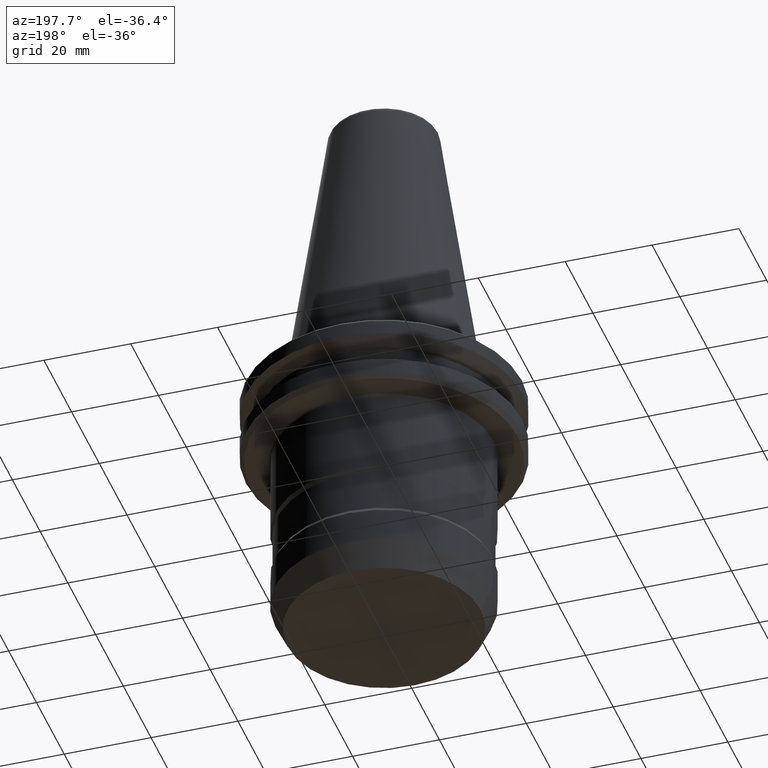
[diagram: clean part render]
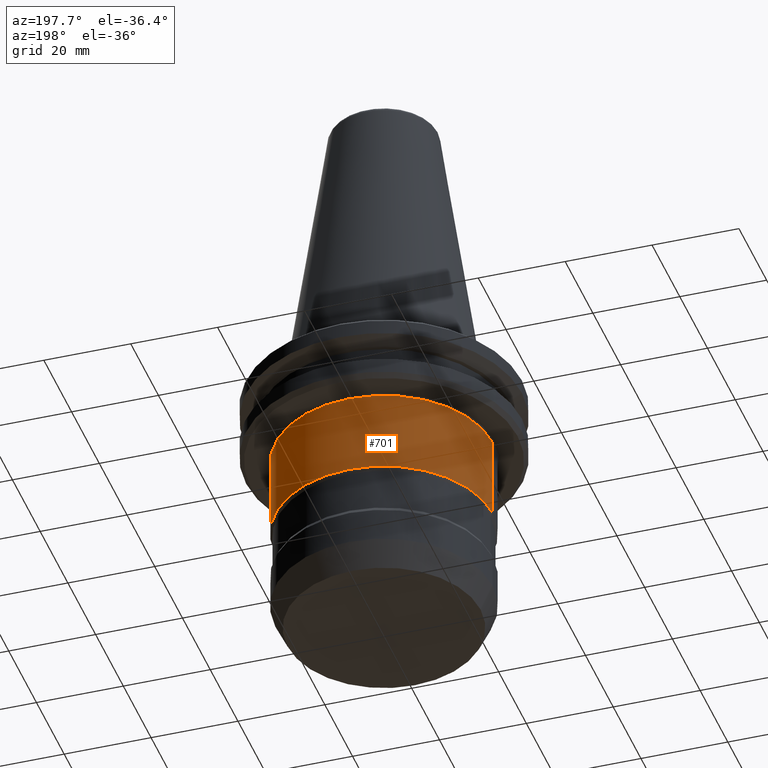
[diagram: same view with one face highlighted and labeled with its STEP entity id]
A machine part, auxiliary view. The second image highlights one B-rep face of the part: STEP entity #701.
In plain terms, the highlighted cylindrical surface (partial cylindrical patch) has radius 25 mm, axis along (-0, -0, -1).
Its self-contained STEP definition (entity closure, byte-faithful):
#55 = DIRECTION ( 'NONE',  ( -1.000000000000000000, 0.0000000000000000000, 0.0000000000000000000 ) ) ;
#69 = CARTESIAN_POINT ( 'NONE',  ( 0.0000000000000000000, 0.0000000000000000000, -19.60000000000028600 ) ) ;
#94 = DIRECTION ( 'NONE',  ( -0.0000000000000000000, -0.0000000000000000000, -1.000000000000000000 ) ) ;
#133 = VERTEX_POINT ( 'NONE', #321 ) ;
#134 = CIRCLE ( 'NONE', #411, 24.99999999999998900 ) ;
#136 = DIRECTION ( 'NONE',  ( -0.0000000000000000000, -0.0000000000000000000, -1.000000000000000000 ) ) ;
#170 = DIRECTION ( 'NONE',  ( -1.000000000000000000, 0.0000000000000000000, 0.0000000000000000000 ) ) ;
#233 = LINE ( 'NONE', #492, #1252 ) ;
#259 = CARTESIAN_POINT ( 'NONE',  ( 0.0000000000000000000, 0.0000000000000000000, -73.52490428627834300 ) ) ;
#283 = EDGE_CURVE ( 'NONE', #554, #1092, #233, .T. ) ;
#321 = CARTESIAN_POINT ( 'NONE',  ( -24.99999999999999600, 3.061616997868382600E-015, -38.83325419939009700 ) ) ;
#411 = AXIS2_PLACEMENT_3D ( 'NONE', #69, #747, #170 ) ;
#432 = ORIENTED_EDGE ( 'NONE', *, *, #283, .T. ) ;
#469 = DIRECTION ( 'NONE',  ( -0.0000000000000000000, -0.0000000000000000000, -1.000000000000000000 ) ) ;
#492 = CARTESIAN_POINT ( 'NONE',  ( 24.99999999999999300, 3.061616997868382300E-015, -73.52490428627834300 ) ) ;
#519 = CIRCLE ( 'NONE', #1000, 24.99999999999999600 ) ;
#532 = CARTESIAN_POINT ( 'NONE',  ( -24.99999999999998900, 0.0000000000000000000, -19.60000000000028600 ) ) ;
#554 = VERTEX_POINT ( 'NONE', #1065 ) ;
#610 = FACE_OUTER_BOUND ( 'NONE', #1066, .T. ) ;
#661 = VERTEX_POINT ( 'NONE', #532 ) ;
#673 = CARTESIAN_POINT ( 'NONE',  ( 0.0000000000000000000, 0.0000000000000000000, -38.83325419939009700 ) ) ;
#701 = ADVANCED_FACE ( 'NONE', ( #610 ), #807, .T. ) ;
#735 = CARTESIAN_POINT ( 'NONE',  ( 24.99999999999999600, 0.0000000000000000000, -38.83325419939009700 ) ) ;
#747 = DIRECTION ( 'NONE',  ( -0.0000000000000000000, -0.0000000000000000000, -1.000000000000000000 ) ) ;
#772 = DIRECTION ( 'NONE',  ( -1.000000000000000000, 0.0000000000000000000, 0.0000000000000000000 ) ) ;
#782 = ORIENTED_EDGE ( 'NONE', *, *, #1245, .F. ) ;
#800 = VECTOR ( 'NONE', #136, 1000.000000000000000 ) ;
#807 = CYLINDRICAL_SURFACE ( 'NONE', #1080, 24.99999999999999300 ) ;
#817 = ORIENTED_EDGE ( 'NONE', *, *, #1156, .T. ) ;
#833 = DIRECTION ( 'NONE',  ( -0.0000000000000000000, -0.0000000000000000000, -1.000000000000000000 ) ) ;
#888 = ORIENTED_EDGE ( 'NONE', *, *, #928, .F. ) ;
#928 = EDGE_CURVE ( 'NONE', #661, #133, #1055, .T. ) ;
#1000 = AXIS2_PLACEMENT_3D ( 'NONE', #673, #94, #772 ) ;
#1055 = LINE ( 'NONE', #1102, #800 ) ;
#1065 = CARTESIAN_POINT ( 'NONE',  ( 24.99999999999998900, 3.061616997868381900E-015, -19.60000000000028600 ) ) ;
#1066 = EDGE_LOOP ( 'NONE', ( #817, #432, #782, #888 ) ) ;
#1080 = AXIS2_PLACEMENT_3D ( 'NONE', #259, #833, #55 ) ;
#1092 = VERTEX_POINT ( 'NONE', #735 ) ;
#1102 = CARTESIAN_POINT ( 'NONE',  ( -24.99999999999999300, 0.0000000000000000000, -73.52490428627834300 ) ) ;
#1156 = EDGE_CURVE ( 'NONE', #661, #554, #134, .T. ) ;
#1245 = EDGE_CURVE ( 'NONE', #133, #1092, #519, .T. ) ;
#1252 = VECTOR ( 'NONE', #469, 1000.000000000000000 ) ;